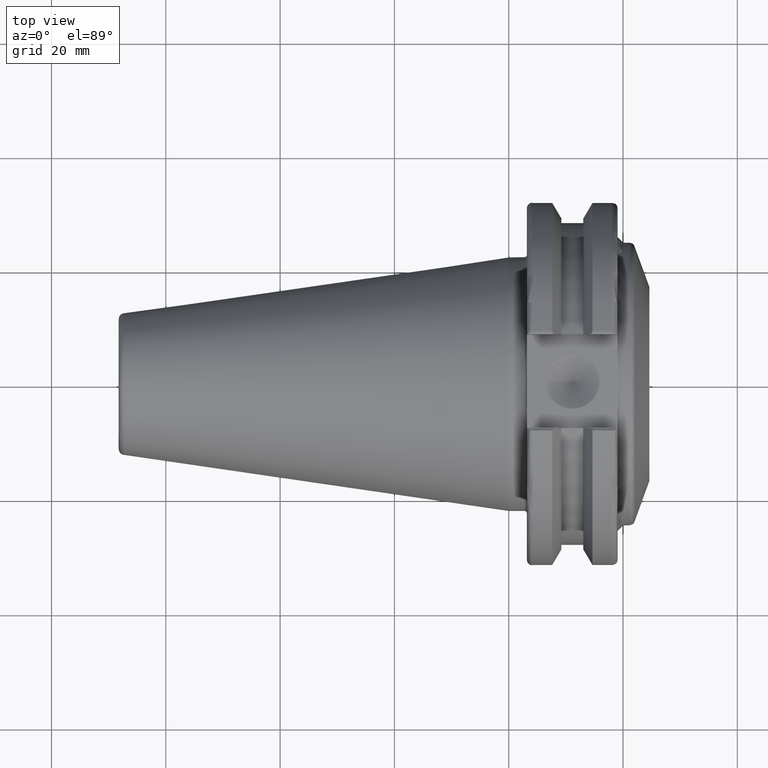
[diagram: clean part render]
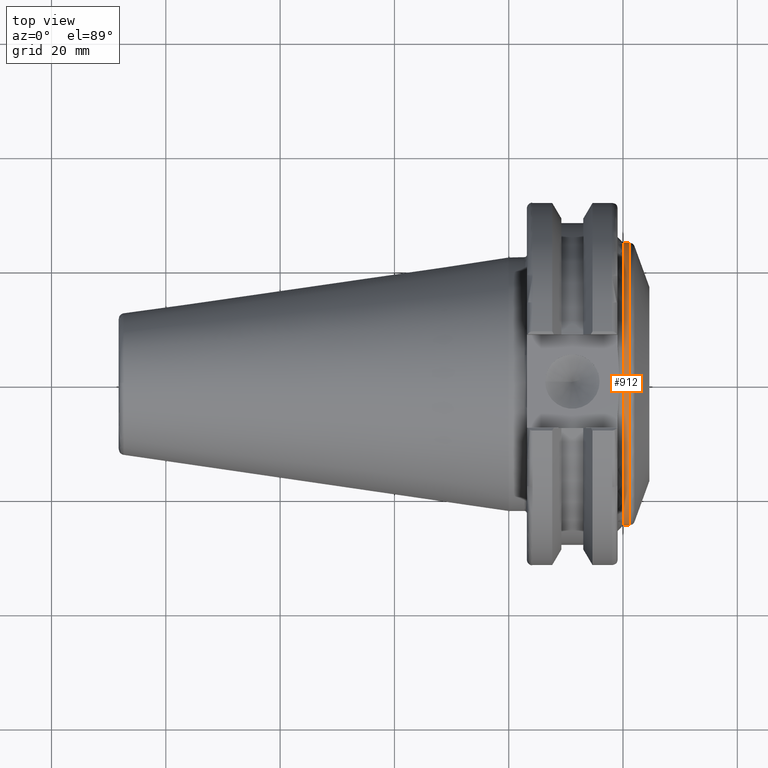
[diagram: same view with one face highlighted and labeled with its STEP entity id]
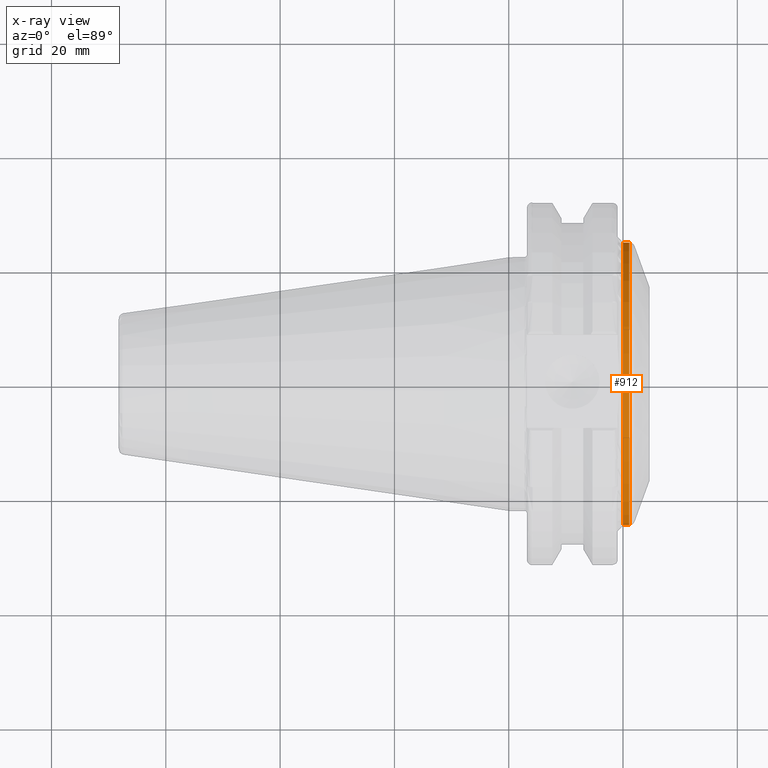
[diagram: x-ray of the same camera — body ghosted, the highlighted face saturated]
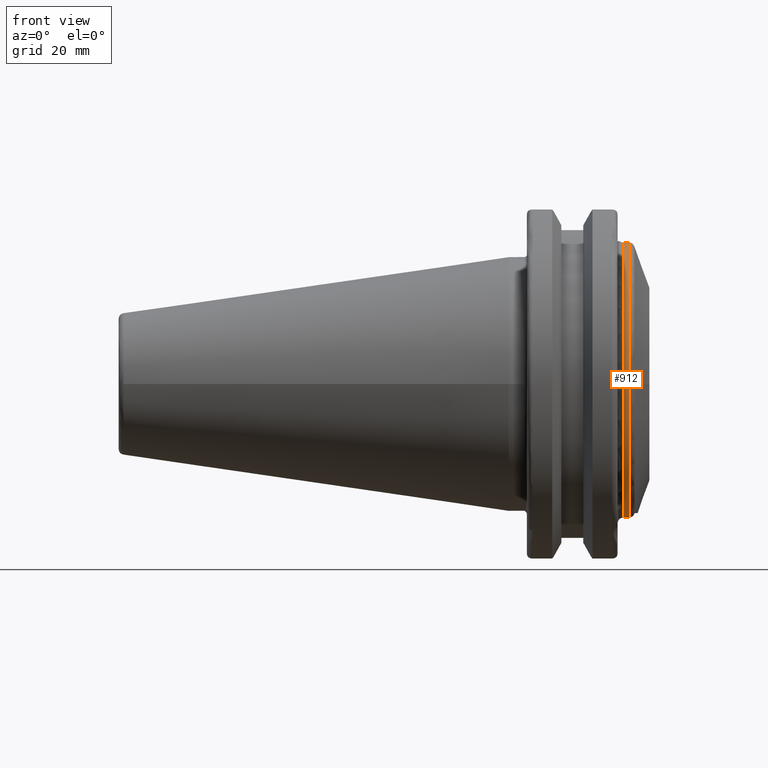
[diagram: same view with one face highlighted and labeled with its STEP entity id]
A machine part, top view. The second image highlights one B-rep face of the part: STEP entity #912.
The next image is the same camera in x-ray: the body ghosted, the highlighted face saturated — about 0% of this face is hidden behind the body in this view.
A second angle (front view) of the same face is appended — the face is thin or edge-on in the first view.
In plain terms, the highlighted cylindrical surface (partial cylindrical patch) has radius 24.75 mm, axis along (1, 0, 0).
Its self-contained STEP definition (entity closure, byte-faithful):
#20=CYLINDRICAL_SURFACE('',#996,24.75);
#48=LINE('',#1422,#104);
#53=LINE('',#1471,#109);
#104=VECTOR('',#1102,10.);
#109=VECTOR('',#1125,10.);
#201=FACE_OUTER_BOUND('',#254,.T.);
#254=EDGE_LOOP('',(#653,#654,#655,#656));
#309=CIRCLE('',#986,24.75);
#312=CIRCLE('',#992,24.75);
#375=VERTEX_POINT('',#1340);
#379=VERTEX_POINT('',#1356);
#393=VERTEX_POINT('',#1411);
#399=VERTEX_POINT('',#1449);
#474=EDGE_CURVE('',#379,#375,#309,.T.);
#489=EDGE_CURVE('',#379,#393,#48,.T.);
#497=EDGE_CURVE('',#399,#393,#312,.T.);
#503=EDGE_CURVE('',#399,#375,#53,.T.);
#653=ORIENTED_EDGE('',*,*,#474,.F.);
#654=ORIENTED_EDGE('',*,*,#489,.T.);
#655=ORIENTED_EDGE('',*,*,#497,.F.);
#656=ORIENTED_EDGE('',*,*,#503,.T.);
#912=ADVANCED_FACE('',(#201),#20,.T.);
#986=AXIS2_PLACEMENT_3D('',#1367,#1090,#1091);
#992=AXIS2_PLACEMENT_3D('',#1460,#1112,#1113);
#996=AXIS2_PLACEMENT_3D('',#1470,#1123,#1124);
#1090=DIRECTION('center_axis',(1.,0.,0.));
#1091=DIRECTION('ref_axis',(0.,1.22464679914735E-16,1.));
#1102=DIRECTION('',(-1.,0.,0.));
#1112=DIRECTION('center_axis',(-1.,0.,0.));
#1113=DIRECTION('ref_axis',(0.,6.12323399573677E-17,1.));
#1123=DIRECTION('center_axis',(1.,0.,0.));
#1124=DIRECTION('ref_axis',(0.,2.83276944882399E-16,1.));
#1125=DIRECTION('',(1.,0.,0.));
#1340=CARTESIAN_POINT('',(21.0790231462272,-8.19,-23.3556502799644));
#1356=CARTESIAN_POINT('',(21.0790231462272,8.19,-23.3556502799644));
#1367=CARTESIAN_POINT('Origin',(21.0790231462272,0.,0.));
#1411=CARTESIAN_POINT('',(20.05,8.19,-23.3556502799644));
#1422=CARTESIAN_POINT('',(20.4146153422185,8.19,-23.3556502799644));
#1449=CARTESIAN_POINT('',(20.05,-8.19,-23.3556502799644));
#1460=CARTESIAN_POINT('Origin',(20.05,0.,0.));
#1470=CARTESIAN_POINT('Origin',(20.4146153422185,0.,0.));
#1471=CARTESIAN_POINT('',(20.4146153422185,-8.19,-23.3556502799644));